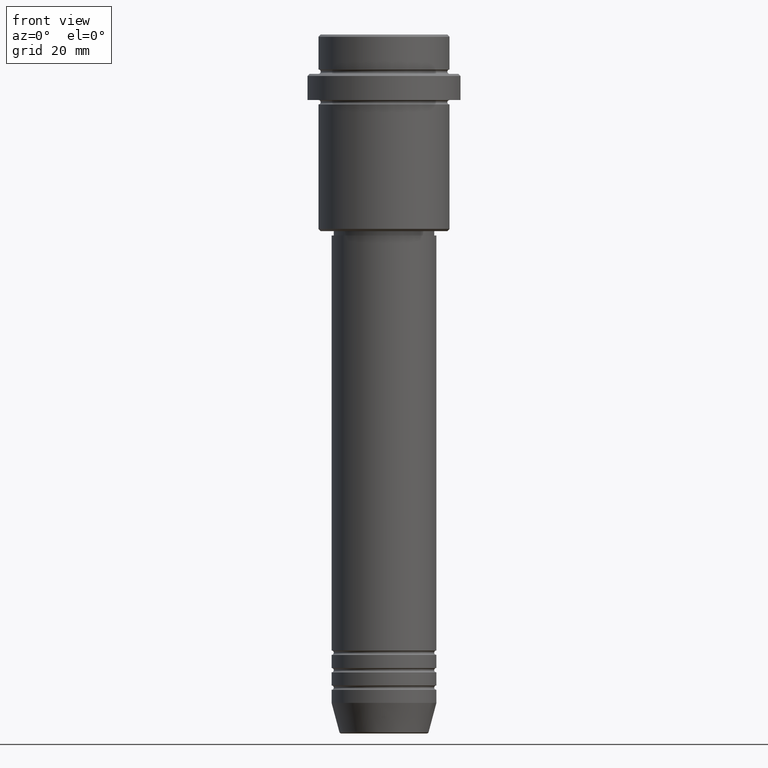
[diagram: clean part render]
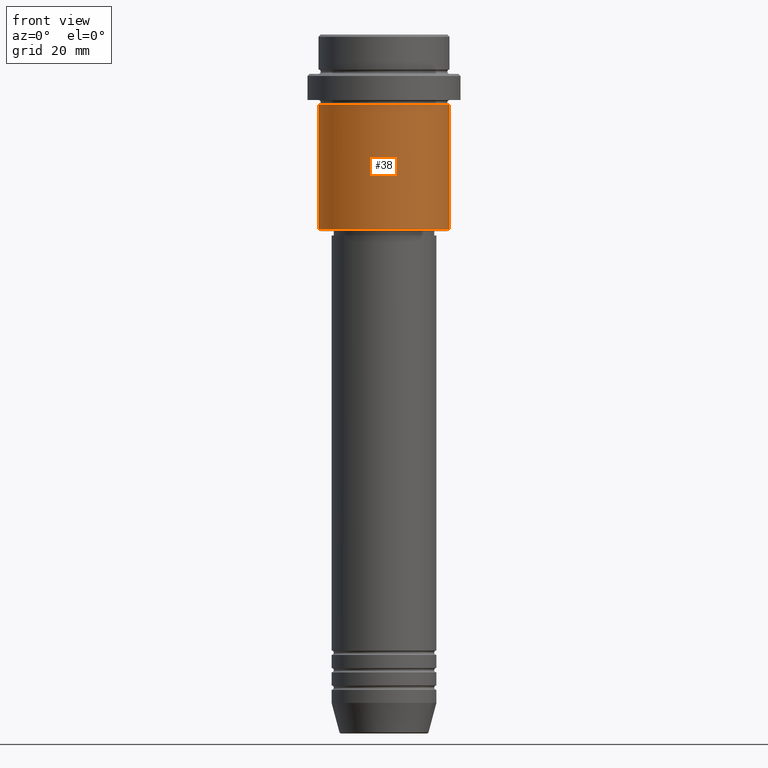
[diagram: same view with one face highlighted and labeled with its STEP entity id]
A machine part, front view. The second image highlights one B-rep face of the part: STEP entity #38.
In plain terms, the highlighted cylindrical surface (partial cylindrical patch) has radius 15 mm, axis along (-0, -0, 1).
Its self-contained STEP definition (entity closure, byte-faithful):
#25 = CARTESIAN_POINT ( 'NONE',  ( 0.000000000000000000, 0.000000000000000000, -16.00000000000000000 ) ) ;
#28 = VECTOR ( 'NONE', #550, 1000.000000000000000 ) ;
#38 = ADVANCED_FACE ( 'NONE', ( #1343 ), #465, .T. ) ;
#57 = ORIENTED_EDGE ( 'NONE', *, *, #493, .T. ) ;
#99 = LINE ( 'NONE', #1412, #28 ) ;
#122 = CARTESIAN_POINT ( 'NONE',  ( 0.000000000000000000, 0.000000000000000000, 0.000000000000000000 ) ) ;
#164 = EDGE_CURVE ( 'NONE', #391, #1170, #99, .T. ) ;
#193 = CARTESIAN_POINT ( 'NONE',  ( -15.00000000000000355, 1.836970198721029983E-15, -16.00000000000000000 ) ) ;
#272 = EDGE_CURVE ( 'NONE', #963, #809, #281, .T. ) ;
#281 = LINE ( 'NONE', #1279, #907 ) ;
#300 = AXIS2_PLACEMENT_3D ( 'NONE', #122, #780, #912 ) ;
#391 = VERTEX_POINT ( 'NONE', #898 ) ;
#412 = DIRECTION ( 'NONE',  ( -0.000000000000000000, -0.000000000000000000, 1.000000000000000000 ) ) ;
#465 = CYLINDRICAL_SURFACE ( 'NONE', #300, 15.00000000000000000 ) ;
#468 = CIRCLE ( 'NONE', #789, 15.00000000000000000 ) ;
#493 = EDGE_CURVE ( 'NONE', #963, #391, #468, .T. ) ;
#495 = DIRECTION ( 'NONE',  ( -1.000000000000000000, 0.000000000000000000, 0.000000000000000000 ) ) ;
#503 = ORIENTED_EDGE ( 'NONE', *, *, #164, .T. ) ;
#550 = DIRECTION ( 'NONE',  ( -0.000000000000000000, -0.000000000000000000, 1.000000000000000000 ) ) ;
#612 = CIRCLE ( 'NONE', #1118, 15.00000000000000178 ) ;
#669 = ORIENTED_EDGE ( 'NONE', *, *, #272, .F. ) ;
#719 = CARTESIAN_POINT ( 'NONE',  ( 0.000000000000000000, 0.000000000000000000, -44.49999999999994316 ) ) ;
#737 = EDGE_LOOP ( 'NONE', ( #669, #57, #503, #1057 ) ) ;
#780 = DIRECTION ( 'NONE',  ( -0.000000000000000000, -0.000000000000000000, 1.000000000000000000 ) ) ;
#789 = AXIS2_PLACEMENT_3D ( 'NONE', #719, #941, #495 ) ;
#809 = VERTEX_POINT ( 'NONE', #193 ) ;
#884 = EDGE_CURVE ( 'NONE', #809, #1170, #612, .T. ) ;
#898 = CARTESIAN_POINT ( 'NONE',  ( 15.00000000000000000, 0.000000000000000000, -44.49999999999994316 ) ) ;
#907 = VECTOR ( 'NONE', #412, 1000.000000000000000 ) ;
#912 = DIRECTION ( 'NONE',  ( 1.000000000000000000, 0.000000000000000000, 0.000000000000000000 ) ) ;
#941 = DIRECTION ( 'NONE',  ( -0.000000000000000000, -0.000000000000000000, 1.000000000000000000 ) ) ;
#963 = VERTEX_POINT ( 'NONE', #1102 ) ;
#1057 = ORIENTED_EDGE ( 'NONE', *, *, #884, .F. ) ;
#1102 = CARTESIAN_POINT ( 'NONE',  ( -15.00000000000000000, 1.836970198721029589E-15, -44.49999999999994316 ) ) ;
#1118 = AXIS2_PLACEMENT_3D ( 'NONE', #25, #1222, #1213 ) ;
#1170 = VERTEX_POINT ( 'NONE', #1195 ) ;
#1195 = CARTESIAN_POINT ( 'NONE',  ( 15.00000000000000178, 0.000000000000000000, -16.00000000000000000 ) ) ;
#1213 = DIRECTION ( 'NONE',  ( 1.000000000000000000, 0.000000000000000000, 0.000000000000000000 ) ) ;
#1222 = DIRECTION ( 'NONE',  ( -0.000000000000000000, -0.000000000000000000, 1.000000000000000000 ) ) ;
#1279 = CARTESIAN_POINT ( 'NONE',  ( -15.00000000000000000, 1.836970198721029589E-15, 0.000000000000000000 ) ) ;
#1343 = FACE_OUTER_BOUND ( 'NONE', #737, .T. ) ;
#1412 = CARTESIAN_POINT ( 'NONE',  ( 15.00000000000000000, 0.000000000000000000, 0.000000000000000000 ) ) ;